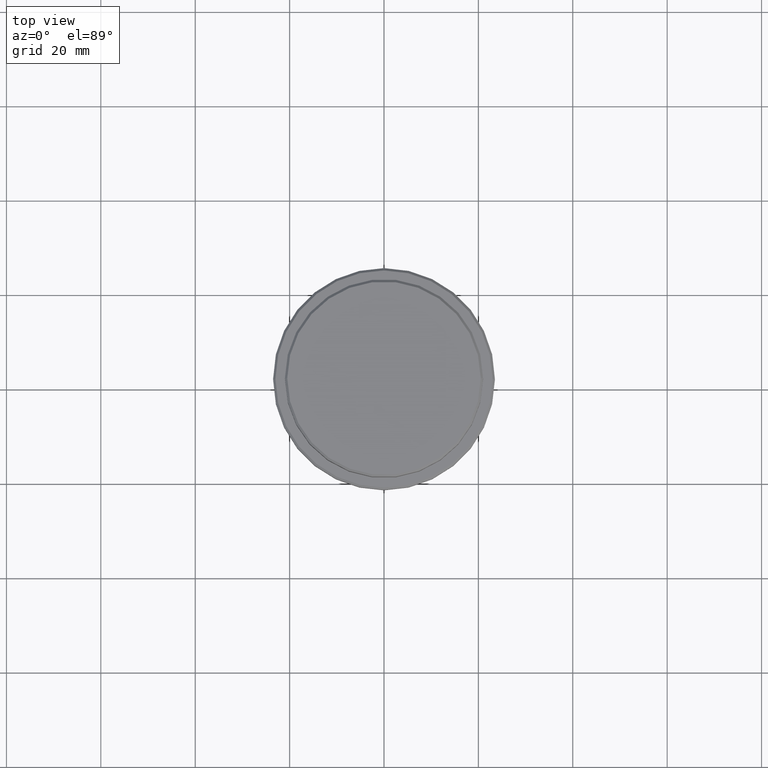
[diagram: clean part render]
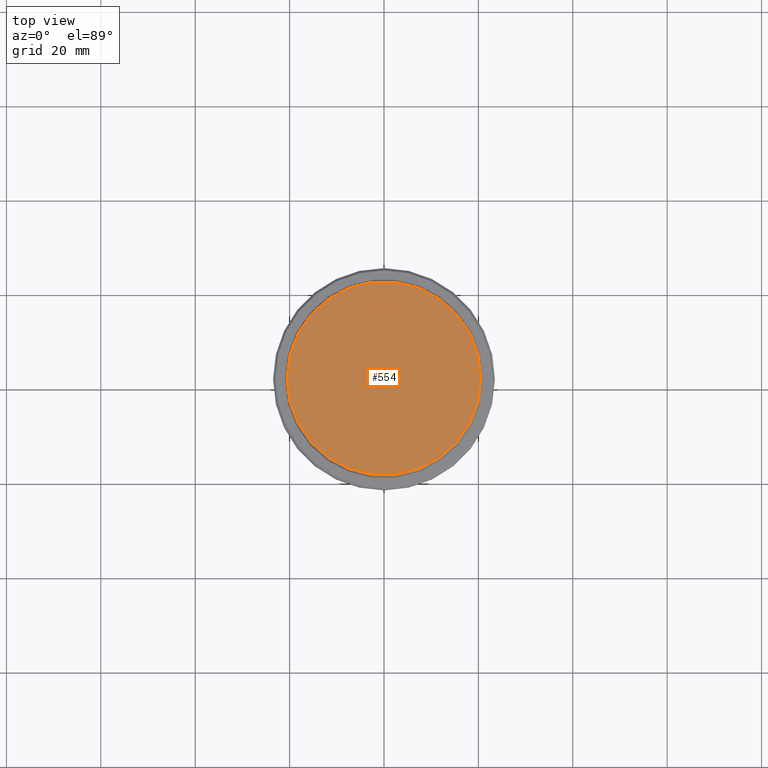
[diagram: same view with one face highlighted and labeled with its STEP entity id]
A machine part, top view. The second image highlights one B-rep face of the part: STEP entity #554.
In plain terms, the highlighted planar face has unit normal (0, -0, 1).
Its self-contained STEP definition (entity closure, byte-faithful):
#98 = PLANE ( 'NONE',  #1144 ) ;
#110 = EDGE_CURVE ( 'NONE', #612, #331, #382, .T. ) ;
#168 = EDGE_LOOP ( 'NONE', ( #948, #613 ) ) ;
#228 = CARTESIAN_POINT ( 'NONE',  ( 20.49999999999996447, 2.541142108230755902E-15, 0.000000000000000000 ) ) ;
#331 = VERTEX_POINT ( 'NONE', #592 ) ;
#382 = CIRCLE ( 'NONE', #958, 20.49999999999996447 ) ;
#439 = DIRECTION ( 'NONE',  ( 1.000000000000000000, 0.000000000000000000, 0.000000000000000000 ) ) ;
#554 = ADVANCED_FACE ( 'NONE', ( #1070 ), #98, .T. ) ;
#564 = AXIS2_PLACEMENT_3D ( 'NONE', #1248, #919, #1168 ) ;
#592 = CARTESIAN_POINT ( 'NONE',  ( -20.49999999999996447, 0.000000000000000000, 0.000000000000000000 ) ) ;
#612 = VERTEX_POINT ( 'NONE', #228 ) ;
#613 = ORIENTED_EDGE ( 'NONE', *, *, #110, .T. ) ;
#665 = DIRECTION ( 'NONE',  ( -0.000000000000000000, -0.000000000000000000, 1.000000000000000000 ) ) ;
#919 = DIRECTION ( 'NONE',  ( -0.000000000000000000, -0.000000000000000000, 1.000000000000000000 ) ) ;
#948 = ORIENTED_EDGE ( 'NONE', *, *, #1142, .T. ) ;
#958 = AXIS2_PLACEMENT_3D ( 'NONE', #1190, #665, #1123 ) ;
#967 = CARTESIAN_POINT ( 'NONE',  ( 0.000000000000000000, 0.000000000000000000, 0.000000000000000000 ) ) ;
#1070 = FACE_OUTER_BOUND ( 'NONE', #168, .T. ) ;
#1121 = CIRCLE ( 'NONE', #564, 20.49999999999996447 ) ;
#1123 = DIRECTION ( 'NONE',  ( 1.000000000000000000, 0.000000000000000000, 0.000000000000000000 ) ) ;
#1142 = EDGE_CURVE ( 'NONE', #331, #612, #1121, .T. ) ;
#1144 = AXIS2_PLACEMENT_3D ( 'NONE', #967, #1408, #439 ) ;
#1168 = DIRECTION ( 'NONE',  ( 1.000000000000000000, 0.000000000000000000, 0.000000000000000000 ) ) ;
#1190 = CARTESIAN_POINT ( 'NONE',  ( 0.000000000000000000, 0.000000000000000000, 0.000000000000000000 ) ) ;
#1248 = CARTESIAN_POINT ( 'NONE',  ( 0.000000000000000000, 0.000000000000000000, 0.000000000000000000 ) ) ;
#1408 = DIRECTION ( 'NONE',  ( 0.000000000000000000, -0.000000000000000000, 1.000000000000000000 ) ) ;